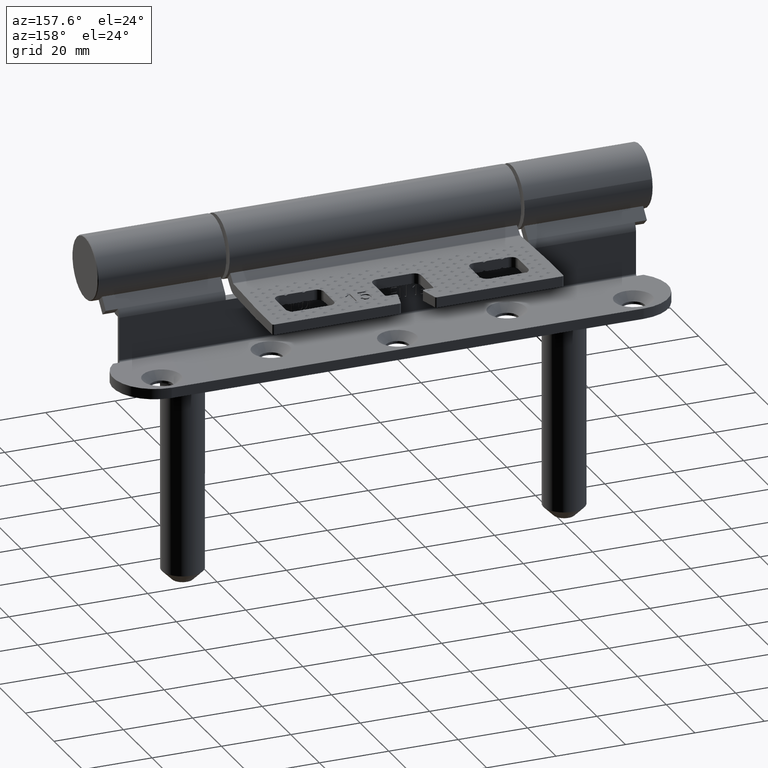
[diagram: clean part render]
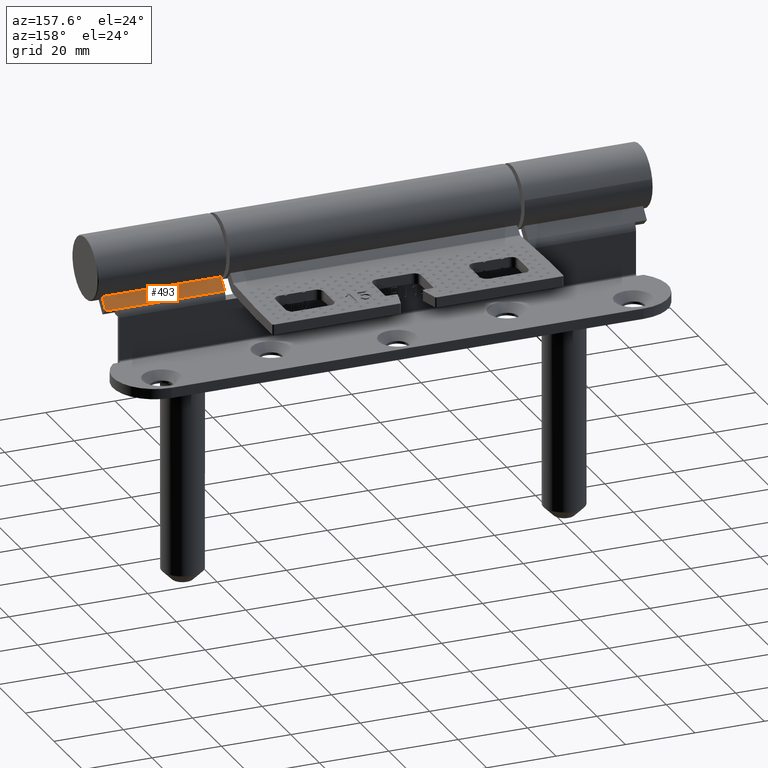
[diagram: same view with one face highlighted and labeled with its STEP entity id]
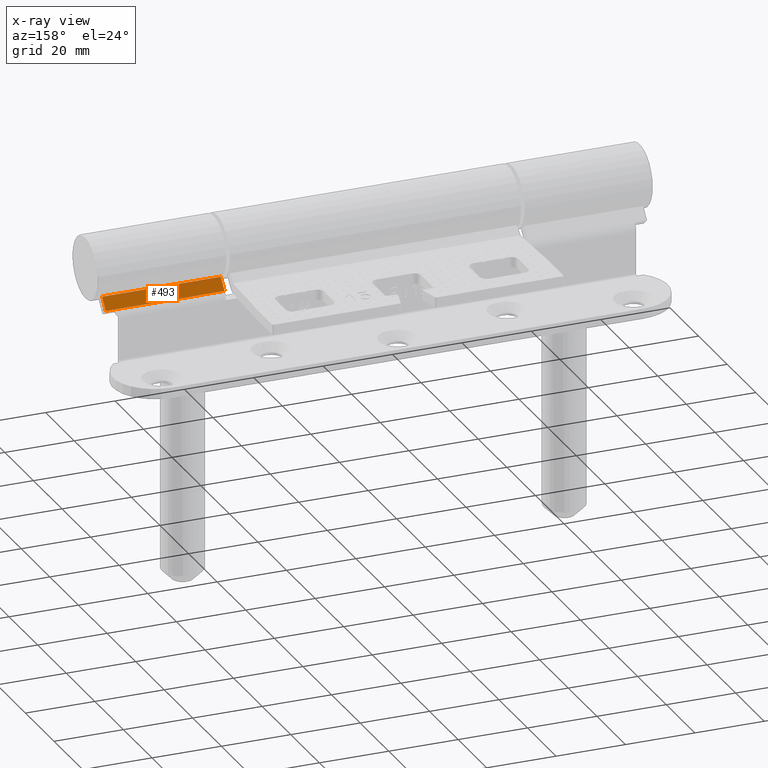
[diagram: x-ray of the same camera — body ghosted, the highlighted face saturated]
A machine part, auxiliary view. The second image highlights one B-rep face of the part: STEP entity #493.
The next image is the same camera in x-ray: the body ghosted, the highlighted face saturated — about 0% of this face is hidden behind the body in this view.
In plain terms, the highlighted planar face has unit normal (-0, -0.7575, -0.6528).
Its self-contained STEP definition (entity closure, byte-faithful):
#488 = CARTESIAN_POINT ( 'NONE',  ( -21.84876091746169990, -74.50000000000001421, 18.09920602515083843 ) ) ;
#493 = ADVANCED_FACE ( 'NONE', ( #25532 ), #8910, .F. ) ;
#1485 = CARTESIAN_POINT ( 'NONE',  ( -21.84876091746169280, 80.00000000000001421, 18.09920602515083843 ) ) ;
#1701 = ORIENTED_EDGE ( 'NONE', *, *, #44729, .T. ) ;
#1989 = VECTOR ( 'NONE', #14460, 1000.000000000000000 ) ;
#2419 = VECTOR ( 'NONE', #35233, 1000.000000000000000 ) ;
#2992 = DIRECTION ( 'NONE',  ( 0.6528387823126768907, -2.046107972916990612E-30, -0.7574968807252616676 ) ) ;
#6340 = CARTESIAN_POINT ( 'NONE',  ( -24.48820563809816520, 80.00000000000001421, 21.16178624694172328 ) ) ;
#6491 = LINE ( 'NONE', #36177, #10511 ) ;
#8044 = VERTEX_POINT ( 'NONE', #488 ) ;
#8071 = CARTESIAN_POINT ( 'NONE',  ( 2.553383255513092642, -77.99999999999995737, -10.21490244211138432 ) ) ;
#8910 = PLANE ( 'NONE',  #34239 ) ;
#9416 = CARTESIAN_POINT ( 'NONE',  ( -24.48820563809816520, -78.00000000000001421, 21.16178624694173394 ) ) ;
#10511 = VECTOR ( 'NONE', #2992, 1000.000000000000000 ) ;
#10623 = VECTOR ( 'NONE', #33936, 1000.000000000000114 ) ;
#14460 = DIRECTION ( 'NONE',  ( -3.882839182991713913E-15, 1.000000000000000000, 4.505306132479947296E-15 ) ) ;
#17511 = CARTESIAN_POINT ( 'NONE',  ( -24.48820563809816520, -43.74999999999999289, 21.16178624694172328 ) ) ;
#18240 = CARTESIAN_POINT ( 'NONE',  ( -21.84876091746199833, -2.081668171172168513E-13, 18.09920602515117949 ) ) ;
#18460 = EDGE_CURVE ( 'NONE', #44306, #45373, #6491, .T. ) ;
#19172 = LINE ( 'NONE', #6340, #2419 ) ;
#20384 = ORIENTED_EDGE ( 'NONE', *, *, #18460, .F. ) ;
#20995 = VERTEX_POINT ( 'NONE', #21332 ) ;
#21332 = CARTESIAN_POINT ( 'NONE',  ( -21.84876091746169280, -78.00000000000001421, 18.09920602515081711 ) ) ;
#21864 = ORIENTED_EDGE ( 'NONE', *, *, #51464, .F. ) ;
#25532 = FACE_OUTER_BOUND ( 'NONE', #26174, .T. ) ;
#25636 = VERTEX_POINT ( 'NONE', #9416 ) ;
#26174 = EDGE_LOOP ( 'NONE', ( #39365, #21864, #1701, #35694, #20384 ) ) ;
#26236 = VECTOR ( 'NONE', #43229, 1000.000000000000000 ) ;
#28613 = CARTESIAN_POINT ( 'NONE',  ( -21.84876091746171412, -43.74999999999999289, 18.09920602515083843 ) ) ;
#29262 = CARTESIAN_POINT ( 'NONE',  ( -21.72750935782432435, 80.00000000000001421, 17.95851634693807952 ) ) ;
#32352 = EDGE_CURVE ( 'NONE', #45373, #8044, #42188, .T. ) ;
#33518 = DIRECTION ( 'NONE',  ( -0.6528387823126768907, 2.046107972916990612E-30, 0.7574968807252616676 ) ) ;
#33936 = DIRECTION ( 'NONE',  ( -0.6528387823126763356, 2.052270948739029767E-30, 0.7574968807252622227 ) ) ;
#34239 = AXIS2_PLACEMENT_3D ( 'NONE', #29262, #37802, #33518 ) ;
#35233 = DIRECTION ( 'NONE',  ( 6.463117025072475944E-31, -1.000000000000000000, -1.035379938102577995E-30 ) ) ;
#35694 = ORIENTED_EDGE ( 'NONE', *, *, #32352, .F. ) ;
#36177 = CARTESIAN_POINT ( 'NONE',  ( -21.72750935782433857, -43.74999999999999289, 17.95851634693807597 ) ) ;
#36789 = EDGE_CURVE ( 'NONE', #44306, #25636, #19172, .T. ) ;
#37802 = DIRECTION ( 'NONE',  ( -0.7574968807252616676, -2.095411779493302098E-31, -0.6528387823126768907 ) ) ;
#39365 = ORIENTED_EDGE ( 'NONE', *, *, #36789, .T. ) ;
#40429 = LINE ( 'NONE', #8071, #10623 ) ;
#42188 = LINE ( 'NONE', #1485, #26236 ) ;
#43229 = DIRECTION ( 'NONE',  ( 6.463117025072475944E-31, -1.000000000000000000, -1.035379938102577995E-30 ) ) ;
#44306 = VERTEX_POINT ( 'NONE', #17511 ) ;
#44729 = EDGE_CURVE ( 'NONE', #20995, #8044, #47117, .T. ) ;
#45373 = VERTEX_POINT ( 'NONE', #28613 ) ;
#47117 = LINE ( 'NONE', #18240, #1989 ) ;
#51464 = EDGE_CURVE ( 'NONE', #20995, #25636, #40429, .T. ) ;